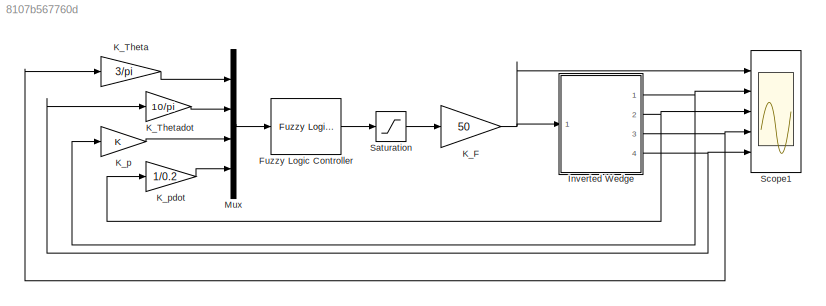
MODEL slx_8107b567760d
KIND model
CONFIG AbsTol = auto
CONFIG EnableMultiTasking = off
CONFIG FixedStep = 0.01
CONFIG MaxStep = auto
CONFIG MinStep = auto
CONFIG RelTol = 1e-3
CONFIG SampleTimeConstraint = Unconstrained
CONFIG Solver = ode4
CONFIG SolverName = ode4
CONFIG StartTime = 0.0
CONFIG StopTime = 40
BLOCK [Reference] Fuzzy Logic Controller  REF=fuzblock/Fuzzy Logic   (lib defined in mdl_858b3b3e7478)
Controller
  Ports = [1, 1]
  SourceBlock = fuzblock/Fuzzy Logic \nController
  SourceProductBaseCode = FL
  SourceProductName = Fuzzy Logic Toolbox
  SourceType = Fuzzy Inference System
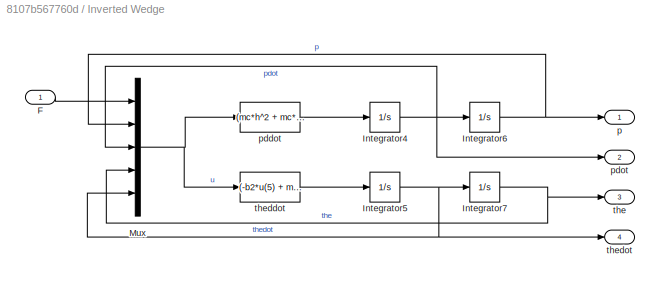
BLOCK [SubSystem] Inverted Wedge
  Ports = [1, 4]
  RequestExecContextInheritance = off
  Variant = off
BLOCK [Inport] Inverted Wedge/F
  IconDisplay = Port number
BLOCK [Integrator] Inverted Wedge/Integrator4
  InitialCondition = pdot0
  Ports = [1, 1]
BLOCK [Integrator] Inverted Wedge/Integrator5
  InitialCondition = thedot0
  Ports = [1, 1]
BLOCK [Integrator] Inverted Wedge/Integrator6
  InitialCondition = p0
  Ports = [1, 1]
BLOCK [Integrator] Inverted Wedge/Integrator7
  InitialCondition = the0
  Ports = [1, 1]
BLOCK [Mux] Inverted Wedge/Mux
  DisplayOption = bar
  Inputs = 5
  Ports = [5, 1]
BLOCK [Outport] Inverted Wedge/p
  IconDisplay = Port number
BLOCK [Fcn] Inverted Wedge/pddot
  Expr = (mc*h^2 + mc*u(2)^2 + J)*(u(1) - b1*u(3) + mc*u(2)*u(5)^2 + mc*g*sin(u(4)))/(mc^2*u(2)^2 + mc*J) - ((mc*h)/(mc^2*u(2)^2 + mc*J))*(-b2*u(5) + mc*g*h*sin(u(4)) + mc*g*u(2)*cos(u(4)) + mw*g*c*sin(u(4)) - 2*mc*u(2)*u(3)*u(5))
BLOCK [Outport] Inverted Wedge/pdot
  IconDisplay = Port number
  Port = 2
BLOCK [Outport] Inverted Wedge/the
  IconDisplay = Port number
  Port = 3
BLOCK [Fcn] Inverted Wedge/theddot
  Expr = (-b2*u(5) + mc*g*h*sin(u(4)) + mc*g*u(2)*cos(u(4)) + mw*g*c*sin(u(4)) - 2*mc*u(2)*u(3)*u(5))/(mc*u(2)^2 + J) - h*(u(1) - b1*u(3) + mc*u(2)*u(5)^2 + mc*g*sin(u(4)))/(mc*u(2)^2 + J)
BLOCK [Outport] Inverted Wedge/thedot
  IconDisplay = Port number
  Port = 4
BLOCK [Gain] K_F
  Gain = 50
  OutDataTypeStr = Inherit: Inherit via internal rule
  ParamDataTypeStr = Inherit: Inherit via internal rule
  SaturateOnIntegerOverflow = off
BLOCK [Gain] K_Theta
  Gain = 3/pi
  OutDataTypeStr = Inherit: Inherit via internal rule
  ParamDataTypeStr = Inherit: Inherit via internal rule
  SaturateOnIntegerOverflow = off
BLOCK [Gain] K_Thetadot
  Gain = 10/pi
  OutDataTypeStr = Inherit: Inherit via internal rule
  ParamDataTypeStr = Inherit: Inherit via internal rule
  SaturateOnIntegerOverflow = off
BLOCK [Gain] K_p
  OutDataTypeStr = Inherit: Inherit via internal rule
  ParamDataTypeStr = Inherit: Inherit via internal rule
  SaturateOnIntegerOverflow = off
BLOCK [Gain] K_pdot
  Gain = 1/0.2
  OutDataTypeStr = Inherit: Inherit via internal rule
  ParamDataTypeStr = Inherit: Inherit via internal rule
  SaturateOnIntegerOverflow = off
BLOCK [Mux] Mux
  DisplayOption = bar
  Ports = [4, 1]
BLOCK [Saturate] Saturation
  InputPortMap = u0
  LowerLimit = -1
  Ports = [1, 1]
  UpperLimit = 1
BLOCK [Scope] Scope1
  NumInputPorts = 5
  Ports = [5]
  ScopeSpecificationString = Simulink.scopes.TimeScopeBlockCfg('CurrentConfiguration', extmgr.ConfigurationSet(extmgr.Configuration('Core','General UI',true,'FigureColor',[1 1 1]),extmgr.Configuration('Core','Source UI',true),extmgr.Configuration('Sources','WiredSimulink',true,'DataLoggingVariableName','ScopeData1'),extmgr.Configuration('Visuals','Time Domain',true,'SerializedDisplays',{struct('MinYLimReal','-8.58002','MaxYLi...<+4923ch>
LINE Fuzzy Logic Controller:1 -> Saturation:1
LINE Inverted Wedge/F:1 -> Inverted Wedge/Mux:1
NET Inverted Wedge/Integrator4:1 -> Inverted Wedge/Integrator6:1, Inverted Wedge/Mux:3, Inverted Wedge/pdot:1
NET Inverted Wedge/Integrator5:1 -> Inverted Wedge/Integrator7:1, Inverted Wedge/Mux:5, Inverted Wedge/thedot:1
NET Inverted Wedge/Integrator6:1 -> Inverted Wedge/Mux:2, Inverted Wedge/p:1
NET Inverted Wedge/Integrator7:1 -> Inverted Wedge/Mux:4, Inverted Wedge/the:1
NET Inverted Wedge/Mux:1 -> Inverted Wedge/pddot:1, Inverted Wedge/theddot:1
LINE Inverted Wedge/pddot:1 -> Inverted Wedge/Integrator4:1
LINE Inverted Wedge/theddot:1 -> Inverted Wedge/Integrator5:1
NET Inverted Wedge:1 -> K_p:1, Scope1:2
NET Inverted Wedge:2 -> K_pdot:1, Scope1:3
NET Inverted Wedge:3 -> K_Theta:1, Scope1:4
NET Inverted Wedge:4 -> K_Thetadot:1, Scope1:5
NET K_F:1 -> Inverted Wedge:1, Scope1:1
LINE K_Theta:1 -> Mux:1
LINE K_Thetadot:1 -> Mux:2
LINE K_p:1 -> Mux:3
LINE K_pdot:1 -> Mux:4
LINE Mux:1 -> Fuzzy Logic Controller:1
LINE Saturation:1 -> K_F:1
note: NET lines group one-source signal fan-out (src -> all destinations, sorted); 1:1 wires keep LINE
